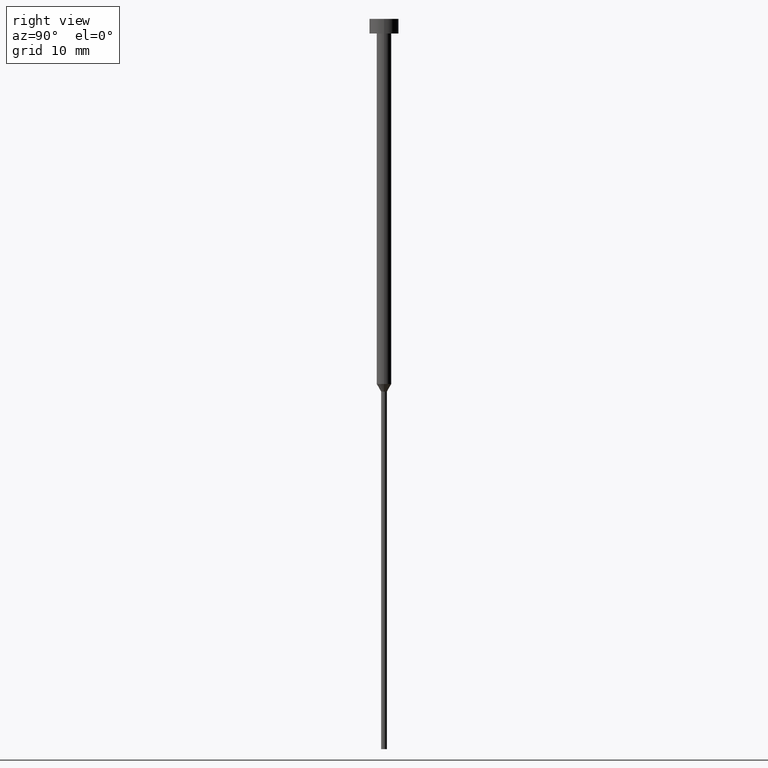
[diagram: clean part render]
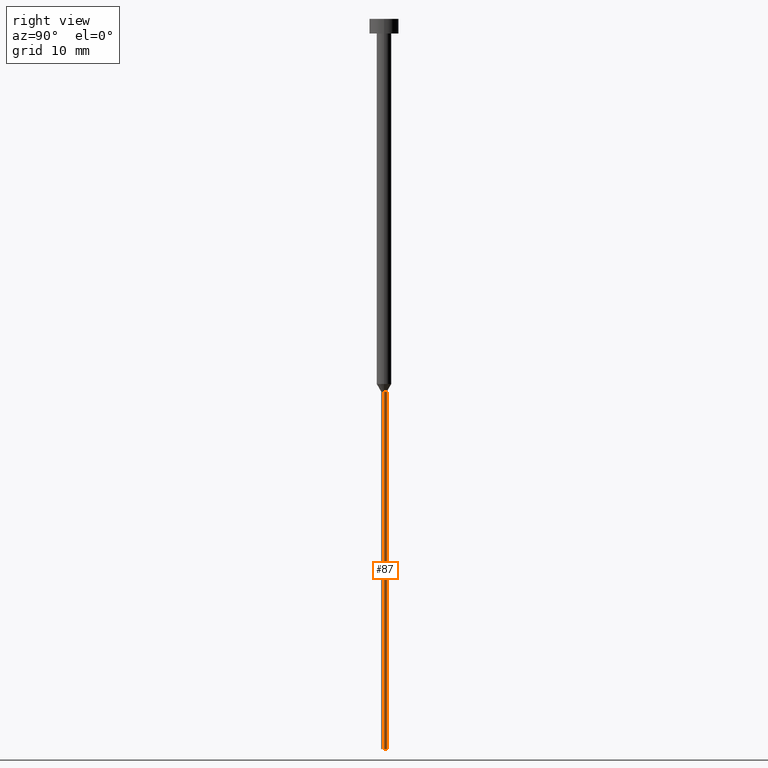
[diagram: same view with one face highlighted and labeled with its STEP entity id]
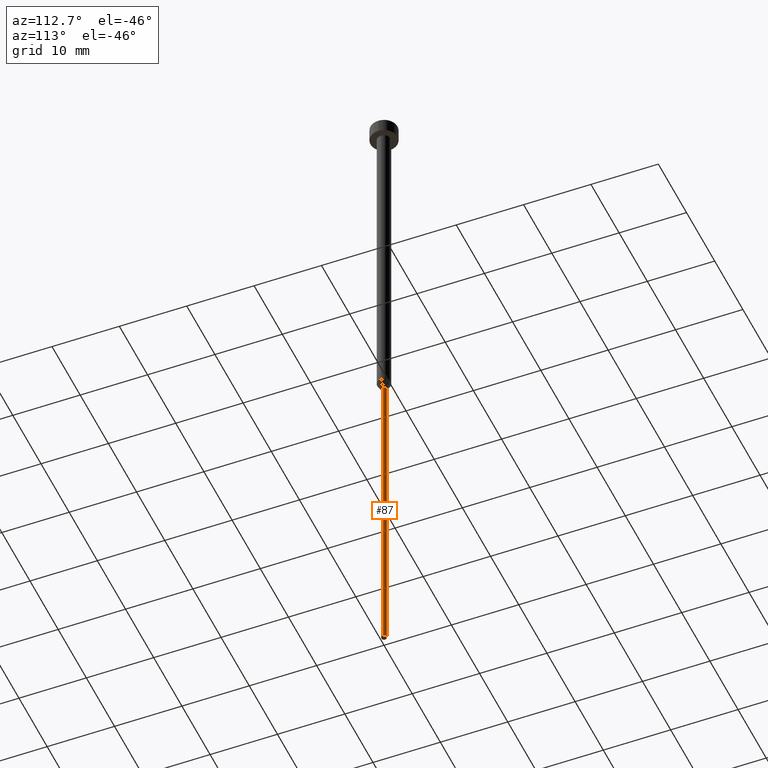
[diagram: same view with one face highlighted and labeled with its STEP entity id]
A machine part, right view. The second image highlights one B-rep face of the part: STEP entity #87.
A second angle (auxiliary view) of the same face is appended — the face is thin or edge-on in the first view.
In plain terms, the highlighted cylindrical surface (edge-blend (fillet) strip) has radius 0.4 mm, axis along (-0, -0, 1).
Its self-contained STEP definition (entity closure, byte-faithful):
#2 = VECTOR ( 'NONE', #323, 1000.000000000000000 ) ;
#11 = VERTEX_POINT ( 'NONE', #207 ) ;
#23 = CARTESIAN_POINT ( 'NONE',  ( 0.000000000000000000, 0.000000000000000000, 0.000000000000000000 ) ) ;
#25 = AXIS2_PLACEMENT_3D ( 'NONE', #23, #126, #249 ) ;
#32 = AXIS2_PLACEMENT_3D ( 'NONE', #131, #55, #106 ) ;
#42 = VERTEX_POINT ( 'NONE', #110 ) ;
#47 = DIRECTION ( 'NONE',  ( -0.000000000000000000, -0.000000000000000000, 1.000000000000000000 ) ) ;
#55 = DIRECTION ( 'NONE',  ( -0.000000000000000000, -0.000000000000000000, 1.000000000000000000 ) ) ;
#56 = VERTEX_POINT ( 'NONE', #267 ) ;
#63 = CARTESIAN_POINT ( 'NONE',  ( -0.3999999999999999667, 4.898587196589412459E-17, 0.000000000000000000 ) ) ;
#87 = ADVANCED_FACE ( 'NONE', ( #148 ), #215, .T. ) ;
#94 = ORIENTED_EDGE ( 'NONE', *, *, #245, .T. ) ;
#106 = DIRECTION ( 'NONE',  ( 1.000000000000000000, 0.000000000000000000, 0.000000000000000000 ) ) ;
#110 = CARTESIAN_POINT ( 'NONE',  ( -0.3999999999999999667, 4.898587196589412459E-17, -51.03923048454132783 ) ) ;
#124 = DIRECTION ( 'NONE',  ( 1.000000000000000000, 0.000000000000000000, 0.000000000000000000 ) ) ;
#126 = DIRECTION ( 'NONE',  ( -0.000000000000000000, -0.000000000000000000, 1.000000000000000000 ) ) ;
#131 = CARTESIAN_POINT ( 'NONE',  ( 0.000000000000000000, 0.000000000000000000, -100.0000000000000000 ) ) ;
#134 = ORIENTED_EDGE ( 'NONE', *, *, #203, .F. ) ;
#145 = LINE ( 'NONE', #63, #2 ) ;
#148 = FACE_OUTER_BOUND ( 'NONE', #152, .T. ) ;
#152 = EDGE_LOOP ( 'NONE', ( #330, #94, #174, #134 ) ) ;
#160 = EDGE_CURVE ( 'NONE', #56, #42, #299, .T. ) ;
#174 = ORIENTED_EDGE ( 'NONE', *, *, #160, .F. ) ;
#181 = CARTESIAN_POINT ( 'NONE',  ( 0.3999999999999999667, 0.000000000000000000, 0.000000000000000000 ) ) ;
#183 = DIRECTION ( 'NONE',  ( -0.000000000000000000, -0.000000000000000000, 1.000000000000000000 ) ) ;
#185 = CIRCLE ( 'NONE', #32, 0.4000000000000000222 ) ;
#203 = EDGE_CURVE ( 'NONE', #222, #56, #247, .T. ) ;
#207 = CARTESIAN_POINT ( 'NONE',  ( -0.4000000000000000777, 4.898587196589413692E-17, -100.0000000000000000 ) ) ;
#212 = AXIS2_PLACEMENT_3D ( 'NONE', #252, #183, #124 ) ;
#215 = CYLINDRICAL_SURFACE ( 'NONE', #25, 0.3999999999999999667 ) ;
#216 = VECTOR ( 'NONE', #47, 1000.000000000000000 ) ;
#222 = VERTEX_POINT ( 'NONE', #329 ) ;
#245 = EDGE_CURVE ( 'NONE', #11, #42, #145, .T. ) ;
#247 = LINE ( 'NONE', #181, #216 ) ;
#249 = DIRECTION ( 'NONE',  ( 1.000000000000000000, 0.000000000000000000, 0.000000000000000000 ) ) ;
#252 = CARTESIAN_POINT ( 'NONE',  ( 0.000000000000000000, 0.000000000000000000, -51.03923048454132783 ) ) ;
#267 = CARTESIAN_POINT ( 'NONE',  ( 0.3999999999999999667, 0.000000000000000000, -51.03923048454132783 ) ) ;
#299 = CIRCLE ( 'NONE', #212, 0.3999999999999999667 ) ;
#323 = DIRECTION ( 'NONE',  ( -0.000000000000000000, -0.000000000000000000, 1.000000000000000000 ) ) ;
#329 = CARTESIAN_POINT ( 'NONE',  ( 0.4000000000000000222, 0.000000000000000000, -100.0000000000000000 ) ) ;
#330 = ORIENTED_EDGE ( 'NONE', *, *, #339, .T. ) ;
#339 = EDGE_CURVE ( 'NONE', #222, #11, #185, .T. ) ;